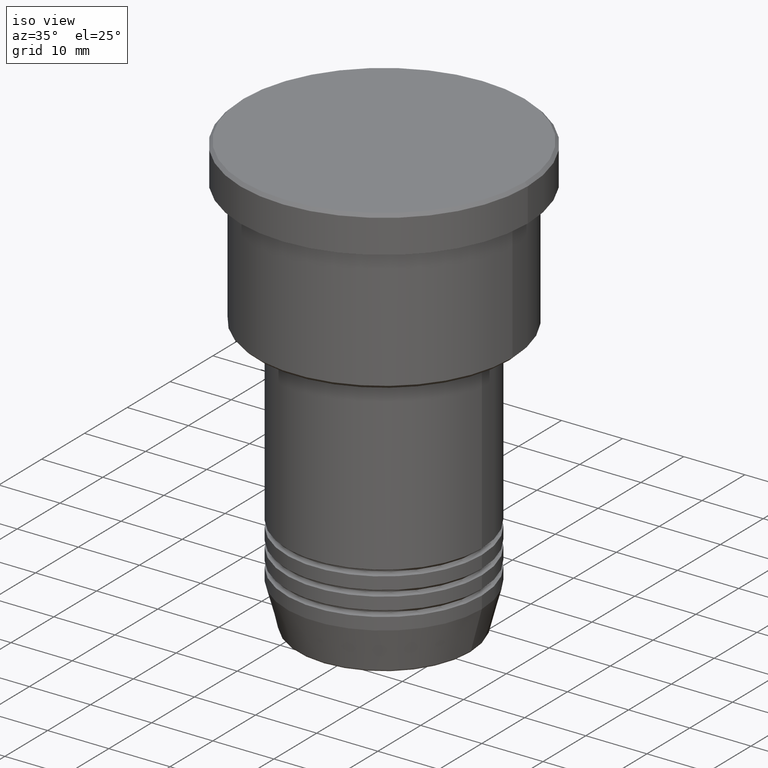
[diagram: clean part render]
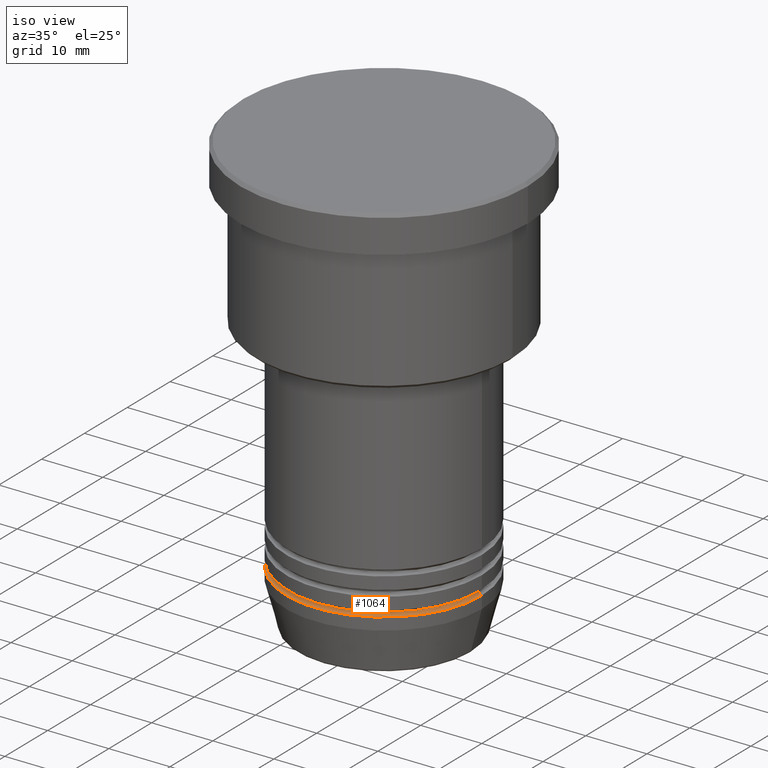
[diagram: same view with one face highlighted and labeled with its STEP entity id]
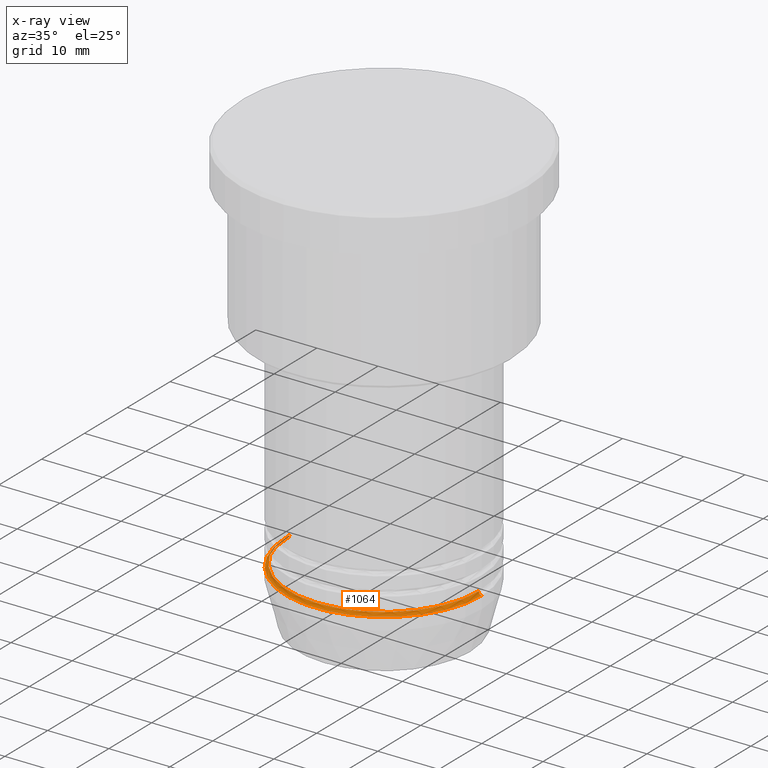
[diagram: x-ray of the same camera — body ghosted, the highlighted face saturated]
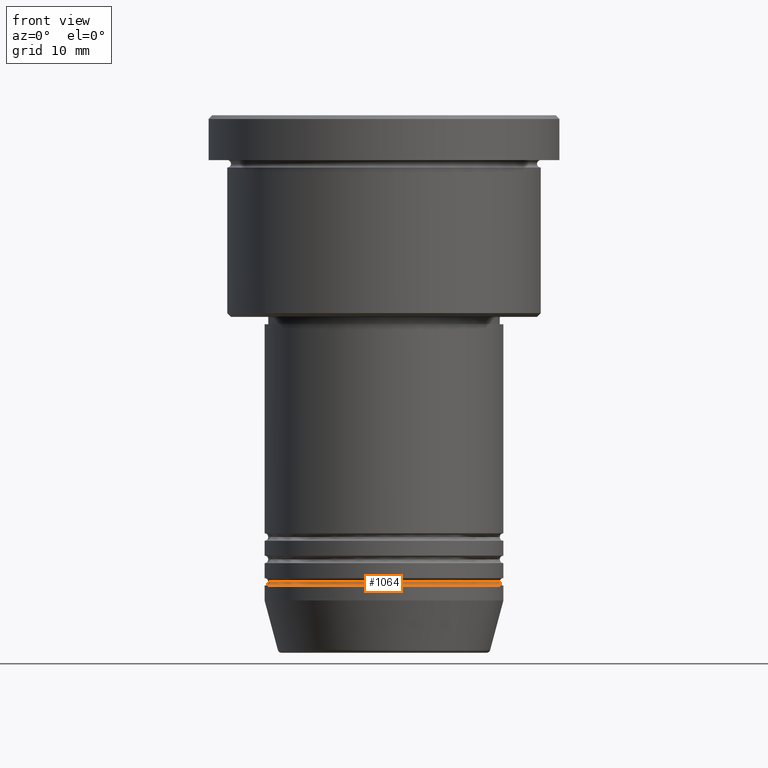
[diagram: same view with one face highlighted and labeled with its STEP entity id]
A machine part, iso view. The second image highlights one B-rep face of the part: STEP entity #1064.
The next image is the same camera in x-ray: the body ghosted, the highlighted face saturated — about 2% of this face is hidden behind the body in this view.
A second angle (front view) of the same face is appended — the face is thin or edge-on in the first view.
In plain terms, the highlighted toroidal blend (fillet) surface has major radius 16 mm and minor (blend) radius 0.5 mm.
Its self-contained STEP definition (entity closure, byte-faithful):
#65 = DIRECTION ( 'NONE',  ( -1.000000000000000000, 1.224646799147349509E-16, 0.000000000000000000 ) ) ;
#112 = CARTESIAN_POINT ( 'NONE',  ( -16.00000000000000000, 1.959434878635765131E-15, -63.00000000000000000 ) ) ;
#159 = AXIS2_PLACEMENT_3D ( 'NONE', #612, #161, #893 ) ;
#161 = DIRECTION ( 'NONE',  ( -0.000000000000000000, -0.000000000000000000, 1.000000000000000000 ) ) ;
#164 = EDGE_CURVE ( 'NONE', #545, #1122, #513, .T. ) ;
#227 = CARTESIAN_POINT ( 'NONE',  ( 16.00000000000000000, 0.000000000000000000, -63.00000000000000000 ) ) ;
#236 = ORIENTED_EDGE ( 'NONE', *, *, #164, .F. ) ;
#265 = DIRECTION ( 'NONE',  ( 1.000000000000000000, 0.000000000000000000, 0.000000000000000000 ) ) ;
#281 = DIRECTION ( 'NONE',  ( 0.000000000000000000, -1.000000000000000000, 0.000000000000000000 ) ) ;
#371 = DIRECTION ( 'NONE',  ( 1.000000000000000000, 0.000000000000000000, 0.000000000000000000 ) ) ;
#372 = EDGE_CURVE ( 'NONE', #545, #686, #534, .T. ) ;
#392 = ORIENTED_EDGE ( 'NONE', *, *, #414, .T. ) ;
#414 = EDGE_CURVE ( 'NONE', #686, #814, #669, .T. ) ;
#456 = AXIS2_PLACEMENT_3D ( 'NONE', #665, #828, #371 ) ;
#481 = CIRCLE ( 'NONE', #845, 0.5000000000000004441 ) ;
#490 = ORIENTED_EDGE ( 'NONE', *, *, #1001, .F. ) ;
#513 = CIRCLE ( 'NONE', #456, 15.50000000000000000 ) ;
#523 = FACE_OUTER_BOUND ( 'NONE', #834, .T. ) ;
#534 = CIRCLE ( 'NONE', #881, 0.5000000000000004441 ) ;
#537 = CARTESIAN_POINT ( 'NONE',  ( -15.50000000000000000, 1.928818708657081344E-15, -62.50000000000000000 ) ) ;
#545 = VERTEX_POINT ( 'NONE', #537 ) ;
#591 = DIRECTION ( 'NONE',  ( -0.000000000000000000, -0.000000000000000000, 1.000000000000000000 ) ) ;
#602 = TOROIDAL_SURFACE ( 'NONE', #159, 16.00000000000000000, 0.5000000000000000000 ) ;
#605 = DIRECTION ( 'NONE',  ( 1.224646799147353207E-16, 1.000000000000000000, 0.000000000000000000 ) ) ;
#612 = CARTESIAN_POINT ( 'NONE',  ( 0.000000000000000000, 0.000000000000000000, -62.50000000000000000 ) ) ;
#665 = CARTESIAN_POINT ( 'NONE',  ( 0.000000000000000000, 0.000000000000000000, -62.50000000000000000 ) ) ;
#669 = CIRCLE ( 'NONE', #863, 16.00000000000000000 ) ;
#686 = VERTEX_POINT ( 'NONE', #112 ) ;
#732 = ORIENTED_EDGE ( 'NONE', *, *, #372, .T. ) ;
#814 = VERTEX_POINT ( 'NONE', #227 ) ;
#828 = DIRECTION ( 'NONE',  ( -0.000000000000000000, -0.000000000000000000, 1.000000000000000000 ) ) ;
#834 = EDGE_LOOP ( 'NONE', ( #236, #732, #392, #490 ) ) ;
#845 = AXIS2_PLACEMENT_3D ( 'NONE', #1025, #281, #1018 ) ;
#863 = AXIS2_PLACEMENT_3D ( 'NONE', #1044, #591, #265 ) ;
#870 = CARTESIAN_POINT ( 'NONE',  ( -16.00000000000000000, 1.959434878635765131E-15, -62.50000000000000000 ) ) ;
#881 = AXIS2_PLACEMENT_3D ( 'NONE', #870, #605, #65 ) ;
#893 = DIRECTION ( 'NONE',  ( 1.000000000000000000, 0.000000000000000000, 0.000000000000000000 ) ) ;
#1001 = EDGE_CURVE ( 'NONE', #1122, #814, #481, .T. ) ;
#1018 = DIRECTION ( 'NONE',  ( 0.000000000000000000, 0.000000000000000000, -1.000000000000000000 ) ) ;
#1025 = CARTESIAN_POINT ( 'NONE',  ( 16.00000000000000000, 0.000000000000000000, -62.50000000000000000 ) ) ;
#1044 = CARTESIAN_POINT ( 'NONE',  ( 0.000000000000000000, 0.000000000000000000, -63.00000000000000000 ) ) ;
#1064 = ADVANCED_FACE ( 'NONE', ( #523 ), #602, .F. ) ;
#1122 = VERTEX_POINT ( 'NONE', #1149 ) ;
#1149 = CARTESIAN_POINT ( 'NONE',  ( 15.50000000000000000, 0.000000000000000000, -62.50000000000000000 ) ) ;